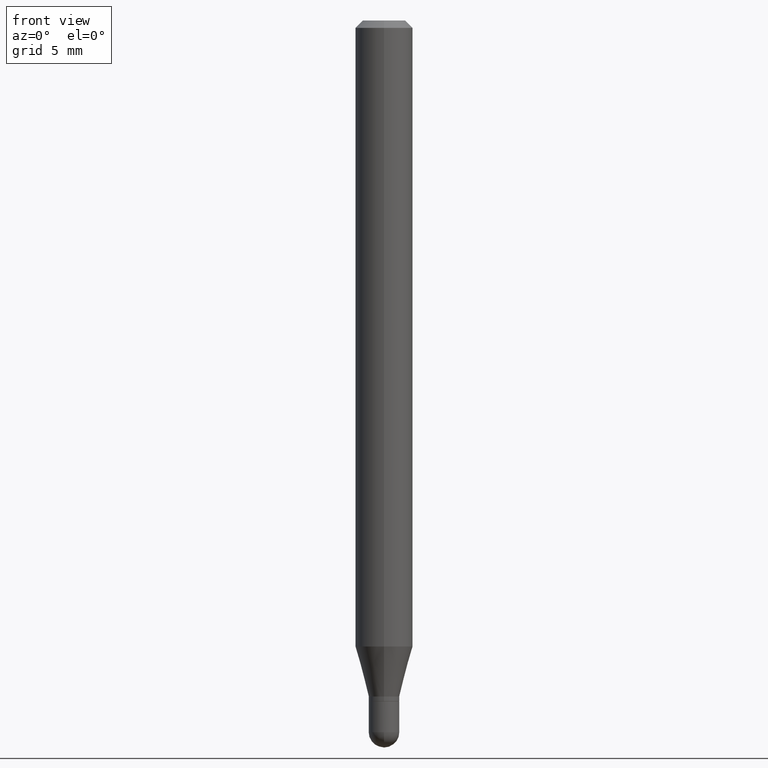
[diagram: clean part render]
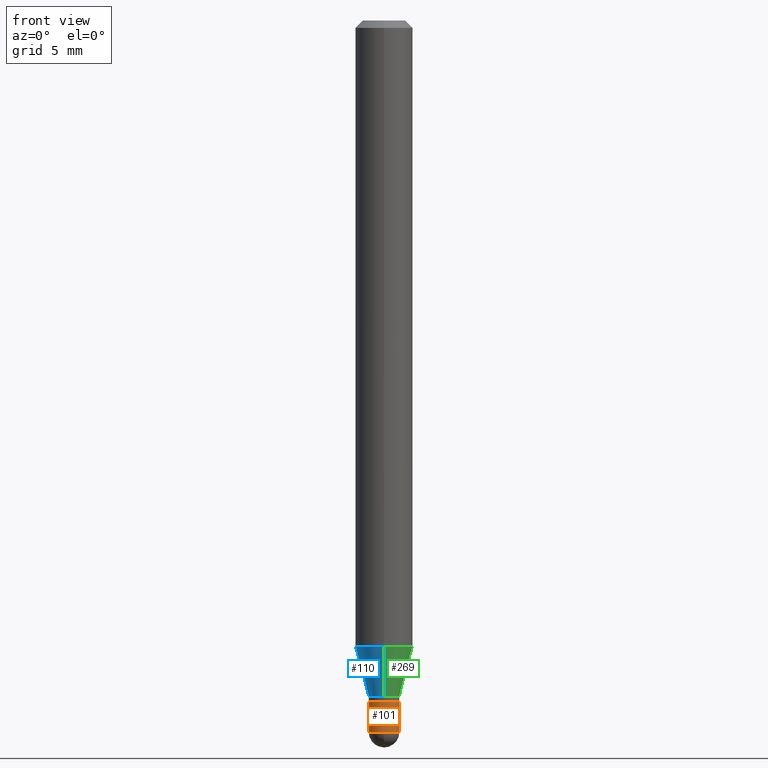
[diagram: same view with three faces highlighted in distinct colors, each labeled with its STEP entity id]
A machine part, front view with three faces highlighted in distinct colors.
Their STEP definitions:

[orange] entity #101 — the highlighted cylindrical surface (edge-blend (fillet) strip) has radius 0.8001 mm, axis along (-0, 0, 1).
#17 = CYLINDRICAL_SURFACE ( 'NONE', #54, 0.03150000000000000716 ) ;
#21 = AXIS2_PLACEMENT_3D ( 'NONE', #65, #99, #143 ) ;
#22 = DIRECTION ( 'NONE',  ( -2.445468806185136877E-29, 3.491481338843145188E-15, 1.000000000000000000 ) ) ;
#23 = EDGE_CURVE ( 'NONE', #33, #393, #139, .T. ) ;
#26 = DIRECTION ( 'NONE',  ( -2.445468806185136877E-29, 3.491481338843145188E-15, 1.000000000000000000 ) ) ;
#33 = VERTEX_POINT ( 'NONE', #448 ) ;
#45 = VERTEX_POINT ( 'NONE', #213 ) ;
#48 = VERTEX_POINT ( 'NONE', #185 ) ;
#50 = ORIENTED_EDGE ( 'NONE', *, *, #357, .T. ) ;
#54 = AXIS2_PLACEMENT_3D ( 'NONE', #58, #135, #413 ) ;
#58 = CARTESIAN_POINT ( 'NONE',  ( 0.000000000000000000, 0.000000000000000000, 0.000000000000000000 ) ) ;
#65 = CARTESIAN_POINT ( 'NONE',  ( 3.427569078749087191E-29, -4.893660244522552864E-15, -1.401599999999999957 ) ) ;
#85 = AXIS2_PLACEMENT_3D ( 'NONE', #123, #482, #129 ) ;
#99 = DIRECTION ( 'NONE',  ( -2.445468806185136597E-29, 3.491481338843145583E-15, 1.000000000000000000 ) ) ;
#100 = DIRECTION ( 'NONE',  ( -2.445468806185136597E-29, 3.491481338843145583E-15, 1.000000000000000000 ) ) ;
#101 = ADVANCED_FACE ( 'NONE', ( #370 ), #17, .T. ) ;
#123 = CARTESIAN_POINT ( 'NONE',  ( 3.581633613538751591E-29, -5.113623568869670202E-15, -1.464599999999999902 ) ) ;
#129 = DIRECTION ( 'NONE',  ( 1.000000000000000000, -6.982962677686254878E-15, 0.000000000000000000 ) ) ;
#135 = DIRECTION ( 'NONE',  ( -2.445468806185136597E-29, 3.491481338843145583E-15, 1.000000000000000000 ) ) ;
#139 = CIRCLE ( 'NONE', #224, 0.03150000000000000716 ) ;
#141 = ORIENTED_EDGE ( 'NONE', *, *, #477, .F. ) ;
#143 = DIRECTION ( 'NONE',  ( 1.000000000000000000, -6.982962677686255667E-15, 0.000000000000000000 ) ) ;
#153 = CARTESIAN_POINT ( 'NONE',  ( 0.03150000000000000716, -2.199633243471174122E-16, 1.535995684375720062E-30 ) ) ;
#154 = VECTOR ( 'NONE', #26, 39.37007874015748143 ) ;
#155 = EDGE_CURVE ( 'NONE', #48, #45, #231, .T. ) ;
#157 = ORIENTED_EDGE ( 'NONE', *, *, #447, .T. ) ;
#162 = EDGE_LOOP ( 'NONE', ( #141, #383, #50, #157, #468 ) ) ;
#185 = CARTESIAN_POINT ( 'NONE',  ( -0.03150000000000000022, -4.779820944931679381E-15, -1.401599999999999957 ) ) ;
#187 = LINE ( 'NONE', #153, #154 ) ;
#191 = LINE ( 'NONE', #470, #282 ) ;
#213 = CARTESIAN_POINT ( 'NONE',  ( 0.03150000000000000022, -5.113623568869669413E-15, -1.401599999999999957 ) ) ;
#224 = AXIS2_PLACEMENT_3D ( 'NONE', #456, #100, #289 ) ;
#231 = CIRCLE ( 'NONE', #21, 0.03150000000000000022 ) ;
#245 = CARTESIAN_POINT ( 'NONE',  ( 0.03150000000000001410, -5.223605231043228871E-15, -1.464599999999999902 ) ) ;
#282 = VECTOR ( 'NONE', #22, 39.37007874015748143 ) ;
#289 = DIRECTION ( 'NONE',  ( 1.000000000000000000, -6.982962677686254878E-15, 0.000000000000000000 ) ) ;
#357 = EDGE_CURVE ( 'NONE', #393, #378, #373, .T. ) ;
#370 = FACE_OUTER_BOUND ( 'NONE', #162, .T. ) ;
#373 = CIRCLE ( 'NONE', #85, 0.03150000000000000716 ) ;
#378 = VERTEX_POINT ( 'NONE', #245 ) ;
#383 = ORIENTED_EDGE ( 'NONE', *, *, #23, .T. ) ;
#393 = VERTEX_POINT ( 'NONE', #433 ) ;
#413 = DIRECTION ( 'NONE',  ( 1.000000000000000000, -6.982962677686265133E-15, 4.876176775795935793E-29 ) ) ;
#433 = CARTESIAN_POINT ( 'NONE',  ( -2.199633243470815191E-16, -0.03150000000000510725, -1.464599999999999902 ) ) ;
#447 = EDGE_CURVE ( 'NONE', #378, #45, #187, .T. ) ;
#448 = CARTESIAN_POINT ( 'NONE',  ( -0.03150000000000001410, -4.779820944931679381E-15, -1.464599999999999902 ) ) ;
#456 = CARTESIAN_POINT ( 'NONE',  ( 3.581633613538751591E-29, -5.113623568869670202E-15, -1.464599999999999902 ) ) ;
#468 = ORIENTED_EDGE ( 'NONE', *, *, #155, .F. ) ;
#470 = CARTESIAN_POINT ( 'NONE',  ( -0.03150000000000000716, 2.238209617644316094E-16, -1.549464553430295502E-30 ) ) ;
#477 = EDGE_CURVE ( 'NONE', #33, #48, #191, .T. ) ;
#482 = DIRECTION ( 'NONE',  ( -2.445468806185136597E-29, 3.491481338843145583E-15, 1.000000000000000000 ) ) ;

[blue] entity #110 — the highlighted conical surface has half-angle 15 deg.
#19 = FACE_OUTER_BOUND ( 'NONE', #222, .T. ) ;
#37 = ORIENTED_EDGE ( 'NONE', *, *, #379, .T. ) ;
#67 = CIRCLE ( 'NONE', #495, 0.03149999999999991696 ) ;
#68 = CARTESIAN_POINT ( 'NONE',  ( 3.216982236154178205E-16, 0.03149999999999505973, -1.391099999999999781 ) ) ;
#80 = DIRECTION ( 'NONE',  ( -2.445482629728212427E-29, 3.491461542742673984E-15, 1.000000000000000000 ) ) ;
#94 = DIRECTION ( 'NONE',  ( -2.445482629728212427E-29, 3.491461542742673984E-15, 1.000000000000000000 ) ) ;
#98 = CARTESIAN_POINT ( 'NONE',  ( -2.199633243470827763E-16, -0.03150000000000477418, -1.391099999999999781 ) ) ;
#106 = DIRECTION ( 'NONE',  ( -6.982962677686266711E-15, -1.000000000000000000, 0.000000000000000000 ) ) ;
#110 = ADVANCED_FACE ( 'NONE', ( #19 ), #444, .T. ) ;
#125 = VERTEX_POINT ( 'NONE', #98 ) ;
#127 = LINE ( 'NONE', #285, #478 ) ;
#144 = CARTESIAN_POINT ( 'NONE',  ( 4.195754854663704065E-16, 0.05904999999999547416, -1.288282000251477655 ) ) ;
#145 = CIRCLE ( 'NONE', #324, 0.05904999999999999832 ) ;
#196 = CARTESIAN_POINT ( 'NONE',  ( 3.401910886214915663E-29, -4.856972152109333718E-15, -1.391099999999999781 ) ) ;
#207 = VECTOR ( 'NONE', #283, 39.37007874015748854 ) ;
#222 = EDGE_LOOP ( 'NONE', ( #234, #458, #37, #277 ) ) ;
#234 = ORIENTED_EDGE ( 'NONE', *, *, #417, .F. ) ;
#235 = DIRECTION ( 'NONE',  ( -6.982962677686266711E-15, -1.000000000000000000, 0.000000000000000000 ) ) ;
#270 = CARTESIAN_POINT ( 'NONE',  ( 3.401910886214915663E-29, -4.856972152109333718E-15, -1.391099999999999781 ) ) ;
#277 = ORIENTED_EDGE ( 'NONE', *, *, #307, .F. ) ;
#280 = VERTEX_POINT ( 'NONE', #466 ) ;
#283 = DIRECTION ( 'NONE',  ( -1.807323732225331323E-15, -0.2588190451025183525, 0.9659258262890689783 ) ) ;
#285 = CARTESIAN_POINT ( 'NONE',  ( 2.238209617644649881E-16, 0.03149999999999505973, -1.391099999999999781 ) ) ;
#290 = EDGE_CURVE ( 'NONE', #464, #125, #67, .T. ) ;
#296 = DIRECTION ( 'NONE',  ( -2.445482629728212427E-29, 3.491461542742673984E-15, 1.000000000000000000 ) ) ;
#307 = EDGE_CURVE ( 'NONE', #492, #280, #145, .T. ) ;
#324 = AXIS2_PLACEMENT_3D ( 'NONE', #509, #94, #476 ) ;
#329 = DIRECTION ( 'NONE',  ( 1.839019923739601499E-15, 0.2588190451025251249, 0.9659258262890670910 ) ) ;
#353 = CARTESIAN_POINT ( 'NONE',  ( -2.199633243470827763E-16, -0.03150000000000477418, -1.391099999999999781 ) ) ;
#379 = EDGE_CURVE ( 'NONE', #125, #280, #480, .T. ) ;
#417 = EDGE_CURVE ( 'NONE', #464, #492, #127, .T. ) ;
#444 = CONICAL_SURFACE ( 'NONE', #469, 0.03149999999999991696, 0.2617993877991504625 ) ;
#458 = ORIENTED_EDGE ( 'NONE', *, *, #290, .T. ) ;
#464 = VERTEX_POINT ( 'NONE', #68 ) ;
#466 = CARTESIAN_POINT ( 'NONE',  ( -4.123439461173426755E-16, -0.05905000000000452248, -1.288282000251476989 ) ) ;
#469 = AXIS2_PLACEMENT_3D ( 'NONE', #270, #296, #106 ) ;
#476 = DIRECTION ( 'NONE',  ( -6.982962677686265922E-15, -1.000000000000000000, 4.626330217890369336E-15 ) ) ;
#478 = VECTOR ( 'NONE', #329, 39.37007874015748854 ) ;
#480 = LINE ( 'NONE', #353, #207 ) ;
#492 = VERTEX_POINT ( 'NONE', #144 ) ;
#495 = AXIS2_PLACEMENT_3D ( 'NONE', #196, #80, #235 ) ;
#509 = CARTESIAN_POINT ( 'NONE',  ( 3.150471253806504168E-29, -4.497987060085641190E-15, -1.288282000251477433 ) ) ;

[green] entity #269 — the highlighted conical surface has half-angle 15 deg.
#6 = CARTESIAN_POINT ( 'NONE',  ( 3.401910886214915663E-29, -4.856972152109333718E-15, -1.391099999999999781 ) ) ;
#18 = AXIS2_PLACEMENT_3D ( 'NONE', #87, #241, #163 ) ;
#64 = DIRECTION ( 'NONE',  ( -2.445482629728212427E-29, 3.491461542742673984E-15, 1.000000000000000000 ) ) ;
#68 = CARTESIAN_POINT ( 'NONE',  ( 3.216982236154178205E-16, 0.03149999999999505973, -1.391099999999999781 ) ) ;
#87 = CARTESIAN_POINT ( 'NONE',  ( 3.150471253806504168E-29, -4.497987060085641190E-15, -1.288282000251477433 ) ) ;
#98 = CARTESIAN_POINT ( 'NONE',  ( -2.199633243470827763E-16, -0.03150000000000477418, -1.391099999999999781 ) ) ;
#125 = VERTEX_POINT ( 'NONE', #98 ) ;
#127 = LINE ( 'NONE', #285, #478 ) ;
#144 = CARTESIAN_POINT ( 'NONE',  ( 4.195754854663704065E-16, 0.05904999999999547416, -1.288282000251477655 ) ) ;
#156 = ORIENTED_EDGE ( 'NONE', *, *, #417, .T. ) ;
#163 = DIRECTION ( 'NONE',  ( -6.982962677686265922E-15, -1.000000000000000000, 4.626330217890369336E-15 ) ) ;
#207 = VECTOR ( 'NONE', #283, 39.37007874015748854 ) ;
#220 = CONICAL_SURFACE ( 'NONE', #510, 0.03149999999999991696, 0.2617993877991504625 ) ;
#241 = DIRECTION ( 'NONE',  ( -2.445482629728212427E-29, 3.491461542742673984E-15, 1.000000000000000000 ) ) ;
#265 = CARTESIAN_POINT ( 'NONE',  ( 3.401910886214915663E-29, -4.856972152109333718E-15, -1.391099999999999781 ) ) ;
#269 = ADVANCED_FACE ( 'NONE', ( #409 ), #220, .T. ) ;
#280 = VERTEX_POINT ( 'NONE', #466 ) ;
#283 = DIRECTION ( 'NONE',  ( -1.807323732225331323E-15, -0.2588190451025183525, 0.9659258262890689783 ) ) ;
#285 = CARTESIAN_POINT ( 'NONE',  ( 2.238209617644649881E-16, 0.03149999999999505973, -1.391099999999999781 ) ) ;
#319 = DIRECTION ( 'NONE',  ( -6.982962677686266711E-15, -1.000000000000000000, 0.000000000000000000 ) ) ;
#320 = ORIENTED_EDGE ( 'NONE', *, *, #340, .T. ) ;
#329 = DIRECTION ( 'NONE',  ( 1.839019923739601499E-15, 0.2588190451025251249, 0.9659258262890670910 ) ) ;
#340 = EDGE_CURVE ( 'NONE', #125, #464, #467, .T. ) ;
#353 = CARTESIAN_POINT ( 'NONE',  ( -2.199633243470827763E-16, -0.03150000000000477418, -1.391099999999999781 ) ) ;
#358 = DIRECTION ( 'NONE',  ( -2.445482629728212427E-29, 3.491461542742673984E-15, 1.000000000000000000 ) ) ;
#369 = DIRECTION ( 'NONE',  ( -6.982962677686266711E-15, -1.000000000000000000, 0.000000000000000000 ) ) ;
#379 = EDGE_CURVE ( 'NONE', #125, #280, #480, .T. ) ;
#405 = EDGE_CURVE ( 'NONE', #280, #492, #441, .T. ) ;
#409 = FACE_OUTER_BOUND ( 'NONE', #479, .T. ) ;
#417 = EDGE_CURVE ( 'NONE', #464, #492, #127, .T. ) ;
#427 = ORIENTED_EDGE ( 'NONE', *, *, #405, .F. ) ;
#432 = AXIS2_PLACEMENT_3D ( 'NONE', #6, #358, #319 ) ;
#441 = CIRCLE ( 'NONE', #18, 0.05904999999999999832 ) ;
#464 = VERTEX_POINT ( 'NONE', #68 ) ;
#466 = CARTESIAN_POINT ( 'NONE',  ( -4.123439461173426755E-16, -0.05905000000000452248, -1.288282000251476989 ) ) ;
#467 = CIRCLE ( 'NONE', #432, 0.03149999999999991696 ) ;
#471 = ORIENTED_EDGE ( 'NONE', *, *, #379, .F. ) ;
#478 = VECTOR ( 'NONE', #329, 39.37007874015748854 ) ;
#479 = EDGE_LOOP ( 'NONE', ( #320, #156, #427, #471 ) ) ;
#480 = LINE ( 'NONE', #353, #207 ) ;
#492 = VERTEX_POINT ( 'NONE', #144 ) ;
#510 = AXIS2_PLACEMENT_3D ( 'NONE', #265, #64, #369 ) ;